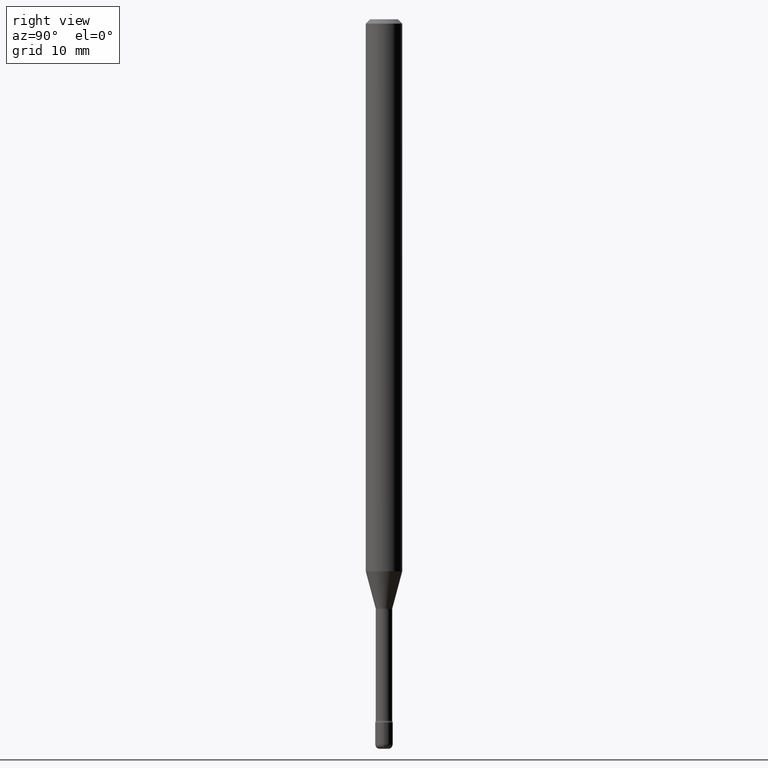
[diagram: clean part render]
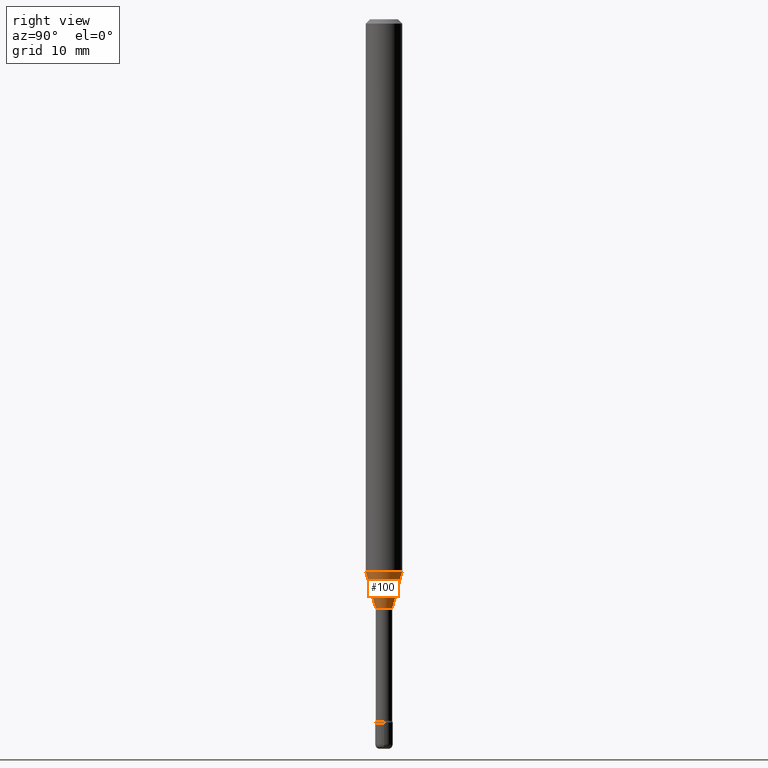
[diagram: same view with one face highlighted and labeled with its STEP entity id]
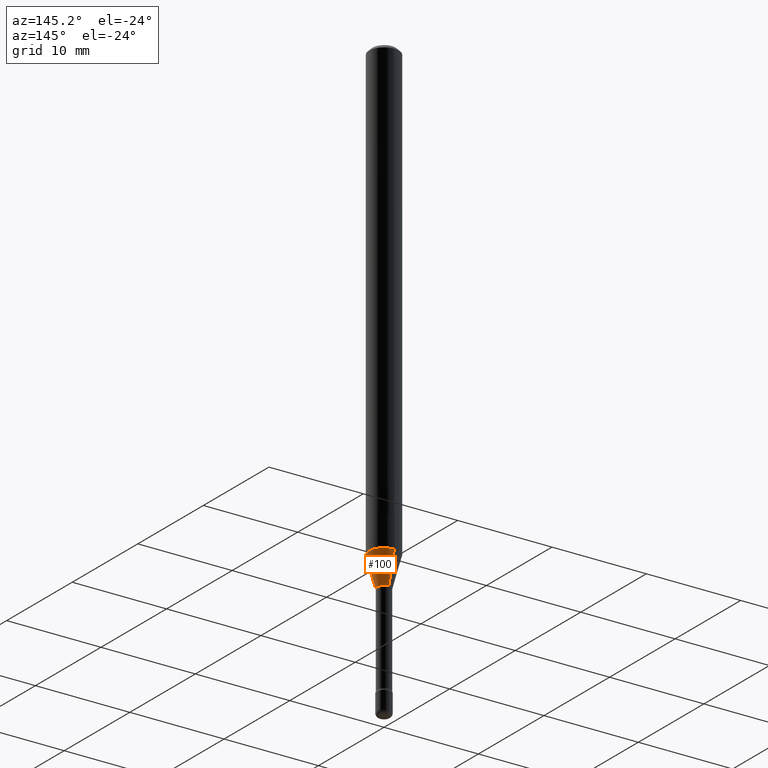
[diagram: same view with one face highlighted and labeled with its STEP entity id]
A machine part, right view. The second image highlights one B-rep face of the part: STEP entity #100.
A second angle (auxiliary view) of the same face is appended — the face is thin or edge-on in the first view.
In plain terms, the highlighted conical surface has half-angle 15 deg.
Its self-contained STEP definition (entity closure, byte-faithful):
#5 = VECTOR ( 'NONE', #462, 39.37007874015748854 ) ;
#11 = ORIENTED_EDGE ( 'NONE', *, *, #517, .T. ) ;
#52 = AXIS2_PLACEMENT_3D ( 'NONE', #506, #555, #334 ) ;
#84 = DIRECTION ( 'NONE',  ( 1.839019923739598738E-15, 0.2588190451025247363, 0.9659258262890673130 ) ) ;
#89 = DIRECTION ( 'NONE',  ( -2.445549682807936912E-29, 3.491365518916084004E-15, 1.000000000000000000 ) ) ;
#100 = ADVANCED_FACE ( 'NONE', ( #456 ), #234, .T. ) ;
#148 = EDGE_CURVE ( 'NONE', #459, #156, #161, .T. ) ;
#151 = CIRCLE ( 'NONE', #52, 0.02871111260566398468 ) ;
#154 = EDGE_LOOP ( 'NONE', ( #554, #11, #542, #537 ) ) ;
#156 = VERTEX_POINT ( 'NONE', #204 ) ;
#159 = VERTEX_POINT ( 'NONE', #511 ) ;
#161 = LINE ( 'NONE', #288, #5 ) ;
#167 = DIRECTION ( 'NONE',  ( -2.445549682807936912E-29, 3.491365518916084004E-15, 1.000000000000000000 ) ) ;
#204 = CARTESIAN_POINT ( 'NONE',  ( -4.364351673553456197E-16, -0.06250000000000664746, -1.891990657300387513 ) ) ;
#234 = CONICAL_SURFACE ( 'NONE', #468, 0.02871111260566398468, 0.2617993877991500740 ) ;
#237 = VECTOR ( 'NONE', #84, 39.37007874015748854 ) ;
#242 = CARTESIAN_POINT ( 'NONE',  ( -2.004886277601499384E-16, -0.02871111260567103113, -2.018092501787273285 ) ) ;
#274 = CARTESIAN_POINT ( 'NONE',  ( 3.240469674128031254E-16, 0.02871111260565693823, -2.018092501787273285 ) ) ;
#278 = EDGE_CURVE ( 'NONE', #156, #159, #330, .T. ) ;
#288 = CARTESIAN_POINT ( 'NONE',  ( -2.004886277601499384E-16, -0.02871111260567103113, -2.018092501787273285 ) ) ;
#292 = DIRECTION ( 'NONE',  ( -6.982962677686265133E-15, -1.000000000000000000, 0.000000000000000000 ) ) ;
#315 = AXIS2_PLACEMENT_3D ( 'NONE', #480, #89, #448 ) ;
#330 = CIRCLE ( 'NONE', #315, 0.06250000000000000000 ) ;
#334 = DIRECTION ( 'NONE',  ( -6.982962677686265133E-15, -1.000000000000000000, 0.000000000000000000 ) ) ;
#357 = EDGE_CURVE ( 'NONE', #459, #368, #151, .T. ) ;
#368 = VERTEX_POINT ( 'NONE', #274 ) ;
#426 = CARTESIAN_POINT ( 'NONE',  ( 2.040047249754971658E-16, 0.02871111260565693823, -2.018092501787273285 ) ) ;
#439 = LINE ( 'NONE', #426, #237 ) ;
#448 = DIRECTION ( 'NONE',  ( -6.982962677686265922E-15, -1.000000000000000000, 4.370956789862821150E-15 ) ) ;
#456 = FACE_OUTER_BOUND ( 'NONE', #154, .T. ) ;
#459 = VERTEX_POINT ( 'NONE', #242 ) ;
#462 = DIRECTION ( 'NONE',  ( -1.807323732225328562E-15, -0.2588190451025179639, 0.9659258262890690894 ) ) ;
#464 = CARTESIAN_POINT ( 'NONE',  ( 4.935345477622942055E-29, -7.045898574723181439E-15, -2.018092501787273285 ) ) ;
#468 = AXIS2_PLACEMENT_3D ( 'NONE', #464, #167, #292 ) ;
#480 = CARTESIAN_POINT ( 'NONE',  ( 4.626957151836543505E-29, -6.605630943009950694E-15, -1.891990657300387735 ) ) ;
#506 = CARTESIAN_POINT ( 'NONE',  ( 4.935345477622942055E-29, -7.045898574723181439E-15, -2.018092501787273285 ) ) ;
#511 = CARTESIAN_POINT ( 'NONE',  ( 4.440892098501086659E-16, 0.06249999999999337336, -1.891990657300388179 ) ) ;
#517 = EDGE_CURVE ( 'NONE', #368, #159, #439, .T. ) ;
#537 = ORIENTED_EDGE ( 'NONE', *, *, #148, .F. ) ;
#542 = ORIENTED_EDGE ( 'NONE', *, *, #278, .F. ) ;
#554 = ORIENTED_EDGE ( 'NONE', *, *, #357, .T. ) ;
#555 = DIRECTION ( 'NONE',  ( -2.445549682807936912E-29, 3.491365518916084004E-15, 1.000000000000000000 ) ) ;